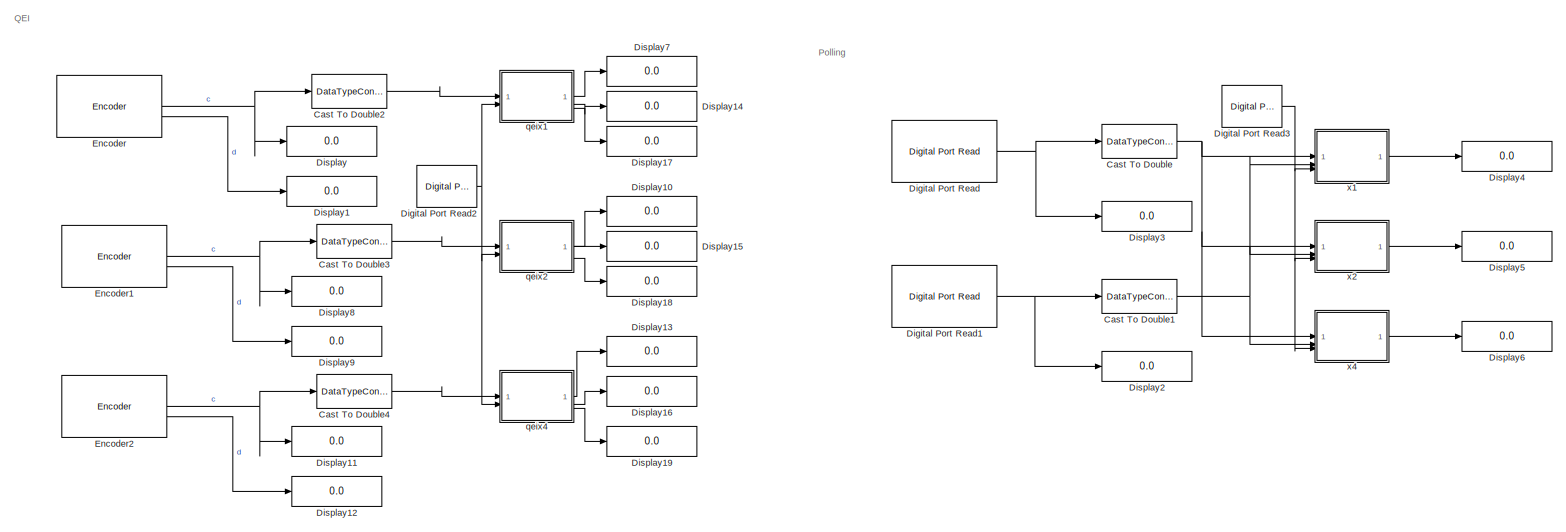
[diagram: root canvas - part 1/1, most of the canvas]
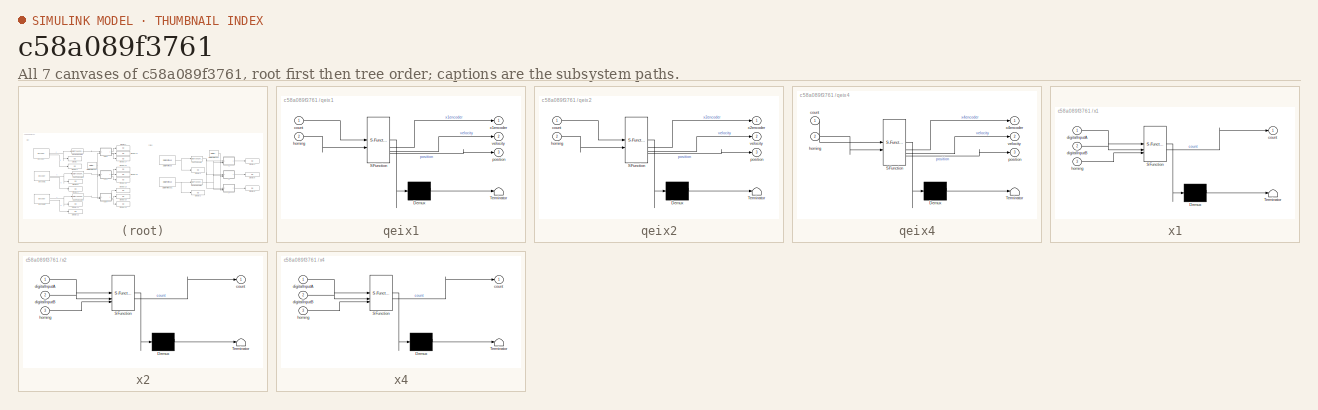
[diagram: thumbnail index - all 7 canvases of the model, root first then tree order]
MODEL slx_c58a089f3761
KIND model
CONFIG AbsTol = auto
CONFIG EnableMultiTasking = on
CONFIG FixedStep = 0.01
CONFIG MaxStep = auto
CONFIG MinStep = auto
CONFIG RelTol = 1e-3
CONFIG SampleTimeConstraint = Unconstrained
CONFIG SolverName = FixedStepAuto
CONFIG StartTime = 0.0
CONFIG StopTime = inf
BLOCK [DataTypeConversion] Cast To Double
  Commented = on
  OutDataTypeStr = double
  RndMeth = Floor
  SaturateOnIntegerOverflow = off
BLOCK [DataTypeConversion] Cast To Double1
  Commented = on
  OutDataTypeStr = double
  RndMeth = Floor
  SaturateOnIntegerOverflow = off
BLOCK [DataTypeConversion] Cast To Double2
  OutDataTypeStr = double
  RndMeth = Floor
  SaturateOnIntegerOverflow = off
BLOCK [DataTypeConversion] Cast To Double3
  OutDataTypeStr = double
  RndMeth = Floor
  SaturateOnIntegerOverflow = off
BLOCK [DataTypeConversion] Cast To Double4
  OutDataTypeStr = double
  RndMeth = Floor
  SaturateOnIntegerOverflow = off
BLOCK [Reference] Digital Port Read  REF=stm32f4xxblockslib/Digital Port Read
  Commented = on
  LibrarySourceBlock = stm32g4xxblockslib/Digital Port Read
  SourceBlock = stm32f4xxblockslib/Digital Port Read
  SourceType = stm32cube.blocks.DigitalPortRead
BLOCK [Reference] Digital Port Read1  REF=stm32f4xxblockslib/Digital Port Read
  Commented = on
  LibrarySourceBlock = stm32g4xxblockslib/Digital Port Read
  SourceBlock = stm32f4xxblockslib/Digital Port Read
  SourceType = stm32cube.blocks.DigitalPortRead
BLOCK [Reference] Digital Port Read2  REF=stm32f4xxblockslib/Digital Port Read
  LibrarySourceBlock = stm32g4xxblockslib/Digital Port Read
  SourceBlock = stm32f4xxblockslib/Digital Port Read
  SourceType = stm32cube.blocks.DigitalPortRead
BLOCK [Reference] Digital Port Read3  REF=stm32f4xxblockslib/Digital Port Read
  Commented = on
  LibrarySourceBlock = stm32g4xxblockslib/Digital Port Read
  SourceBlock = stm32f4xxblockslib/Digital Port Read
  SourceType = stm32cube.blocks.DigitalPortRead
BLOCK [Display] Display
  Decimation = 1
  Format = long
BLOCK [Display] Display1
  Decimation = 1
  Format = long
BLOCK [Display] Display10
  Decimation = 1
  Format = long
BLOCK [Display] Display11
  Decimation = 1
  Format = long
BLOCK [Display] Display12
  Decimation = 1
  Format = long
BLOCK [Display] Display13
  Decimation = 1
  Format = long
BLOCK [Display] Display14
  Decimation = 1
  Format = long
BLOCK [Display] Display15
  Decimation = 1
  Format = long
BLOCK [Display] Display16
  Decimation = 1
  Format = long
BLOCK [Display] Display17
  Decimation = 1
  Format = long
BLOCK [Display] Display18
  Decimation = 1
  Format = long
BLOCK [Display] Display19
  Decimation = 1
  Format = long
BLOCK [Display] Display2
  Commented = on
  Decimation = 1
BLOCK [Display] Display3
  Commented = on
  Decimation = 1
BLOCK [Display] Display4
  Commented = on
  Decimation = 1
BLOCK [Display] Display5
  Commented = on
  Decimation = 1
BLOCK [Display] Display6
  Commented = on
  Decimation = 1
BLOCK [Display] Display7
  Decimation = 1
  Format = long
BLOCK [Display] Display8
  Decimation = 1
  Format = long
BLOCK [Display] Display9
  Decimation = 1
  Format = long
BLOCK [Reference] Encoder  REF=stm32g4xxblockslib/Encoder
  SourceBlock = stm32g4xxblockslib/Encoder
  SourceType = stm32cube.blocks.EncoderBlockForG4
BLOCK [Reference] Encoder1  REF=stm32g4xxblockslib/Encoder
  SourceBlock = stm32g4xxblockslib/Encoder
  SourceType = stm32cube.blocks.EncoderBlockForG4
BLOCK [Reference] Encoder2  REF=stm32g4xxblockslib/Encoder
  SourceBlock = stm32g4xxblockslib/Encoder
  SourceType = stm32cube.blocks.EncoderBlockForG4
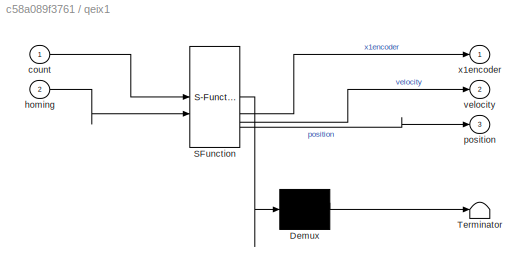
BLOCK [SubSystem] qeix1
  ErrorFcn = Stateflow.Translate.translate
  PermitHierarchicalResolution = ExplicitOnly
  SFBlockType = MATLAB Function
  TreatAsAtomicUnit = on
BLOCK [Demux] qeix1/ Demux 
  Outputs = 1
BLOCK [S-Function] qeix1/ SFunction 
  EnableBusSupport = on
  FunctionName = sf_sfun
  PortCounts = [2 4]
  SFcnIsStateOwnerBlock = off
  SFunctionDeploymentMode = off
  Tag = Stateflow S-Function 4
BLOCK [Terminator] qeix1/ Terminator 
BLOCK [Inport] qeix1/count
BLOCK [Inport] qeix1/homing
  Port = 2
BLOCK [Outport] qeix1/position
  Port = 3
BLOCK [Outport] qeix1/velocity
  Port = 2
BLOCK [Outport] qeix1/x1encoder
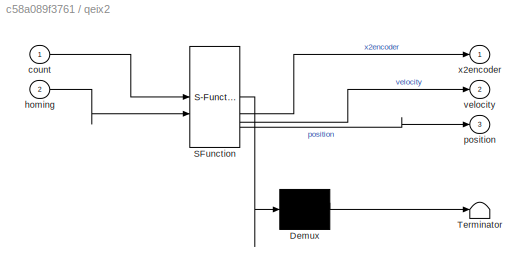
BLOCK [SubSystem] qeix2
  ErrorFcn = Stateflow.Translate.translate
  PermitHierarchicalResolution = ExplicitOnly
  SFBlockType = MATLAB Function
  TreatAsAtomicUnit = on
BLOCK [Demux] qeix2/ Demux 
  Outputs = 1
BLOCK [S-Function] qeix2/ SFunction 
  EnableBusSupport = on
  FunctionName = sf_sfun
  PortCounts = [2 4]
  SFcnIsStateOwnerBlock = off
  SFunctionDeploymentMode = off
  Tag = Stateflow S-Function 5
BLOCK [Terminator] qeix2/ Terminator 
BLOCK [Inport] qeix2/count
BLOCK [Inport] qeix2/homing
  Port = 2
BLOCK [Outport] qeix2/position
  Port = 3
BLOCK [Outport] qeix2/velocity
  Port = 2
BLOCK [Outport] qeix2/x2encoder
BLOCK [SubSystem] qeix4
  ErrorFcn = Stateflow.Translate.translate
  PermitHierarchicalResolution = ExplicitOnly
  SFBlockType = MATLAB Function
  TreatAsAtomicUnit = on
BLOCK [Demux] qeix4/ Demux 
  Outputs = 1
BLOCK [S-Function] qeix4/ SFunction 
  EnableBusSupport = on
  FunctionName = sf_sfun
  PortCounts = [2 4]
  SFcnIsStateOwnerBlock = off
  SFunctionDeploymentMode = off
  Tag = Stateflow S-Function 6
BLOCK [Terminator] qeix4/ Terminator 
BLOCK [Inport] qeix4/count
BLOCK [Inport] qeix4/homing
  Port = 2
BLOCK [Outport] qeix4/position
  Port = 3
BLOCK [Outport] qeix4/velocity
  Port = 2
BLOCK [Outport] qeix4/x4encoder
BLOCK [SubSystem] x1
  Commented = on
  ErrorFcn = Stateflow.Translate.translate
  PermitHierarchicalResolution = ExplicitOnly
  SFBlockType = MATLAB Function
  TreatAsAtomicUnit = on
BLOCK [Demux] x1/ Demux 
  Outputs = 1
BLOCK [S-Function] x1/ SFunction 
  EnableBusSupport = on
  FunctionName = sf_sfun
  PortCounts = [3 2]
  SFcnIsStateOwnerBlock = off
  SFunctionDeploymentMode = off
  Tag = Stateflow S-Function 2
BLOCK [Terminator] x1/ Terminator 
BLOCK [Outport] x1/count
BLOCK [Inport] x1/digitalInputA
BLOCK [Inport] x1/digitalInputB
  Port = 2
BLOCK [Inport] x1/homing
  Port = 3
BLOCK [SubSystem] x2
  Commented = on
  ErrorFcn = Stateflow.Translate.translate
  PermitHierarchicalResolution = ExplicitOnly
  SFBlockType = MATLAB Function
  TreatAsAtomicUnit = on
BLOCK [Demux] x2/ Demux 
  Outputs = 1
BLOCK [S-Function] x2/ SFunction 
  EnableBusSupport = on
  FunctionName = sf_sfun
  PortCounts = [3 2]
  SFcnIsStateOwnerBlock = off
  SFunctionDeploymentMode = off
  Tag = Stateflow S-Function 1
BLOCK [Terminator] x2/ Terminator 
BLOCK [Outport] x2/count
BLOCK [Inport] x2/digitalInputA
BLOCK [Inport] x2/digitalInputB
  Port = 2
BLOCK [Inport] x2/homing
  Port = 3
BLOCK [SubSystem] x4
  Commented = on
  ErrorFcn = Stateflow.Translate.translate
  PermitHierarchicalResolution = ExplicitOnly
  SFBlockType = MATLAB Function
  TreatAsAtomicUnit = on
BLOCK [Demux] x4/ Demux 
  Outputs = 1
BLOCK [S-Function] x4/ SFunction 
  EnableBusSupport = on
  FunctionName = sf_sfun
  PortCounts = [3 2]
  SFcnIsStateOwnerBlock = off
  SFunctionDeploymentMode = off
  Tag = Stateflow S-Function 3
BLOCK [Terminator] x4/ Terminator 
BLOCK [Outport] x4/count
BLOCK [Inport] x4/digitalInputA
BLOCK [Inport] x4/digitalInputB
  Port = 2
BLOCK [Inport] x4/homing
  Port = 3
ANNOTATION (root): Polling
ANNOTATION (root): QEI
NET Cast To Double1:1 -> x1:2, x2:2, x4:2
LINE Cast To Double2:1 -> qeix1:1
LINE Cast To Double3:1 -> qeix2:1
LINE Cast To Double4:1 -> qeix4:1
NET Cast To Double:1 -> x1:1, x2:1, x4:1
NET Digital Port Read1:1 -> Cast To Double1:1, Display2:1
NET Digital Port Read2:1 -> qeix1:2, qeix2:2, qeix4:2
NET Digital Port Read3:1 -> x1:3, x2:3, x4:3
NET Digital Port Read:1 -> Cast To Double:1, Display3:1
NET Encoder1:1 -> Cast To Double3:1, Display8:1
LINE Encoder1:2 -> Display9:1
NET Encoder2:1 -> Cast To Double4:1, Display11:1
LINE Encoder2:2 -> Display12:1
NET Encoder:1 -> Cast To Double2:1, Display:1
LINE Encoder:2 -> Display1:1
LINE qeix1:1 -> Display7:1
LINE qeix1:2 -> Display14:1
LINE qeix1:3 -> Display17:1
LINE qeix2:1 -> Display10:1
LINE qeix2:2 -> Display15:1
LINE qeix2:3 -> Display18:1
LINE qeix4:1 -> Display13:1
LINE qeix4:2 -> Display16:1
LINE qeix4:3 -> Display19:1
LINE x1:1 -> Display4:1
LINE x2:1 -> Display5:1
LINE x4:1 -> Display6:1
note: NET lines group one-source signal fan-out (src -> all destinations, sorted); 1:1 wires keep LINE
CHART x2 states=1 transitions=1
  STATE_LABEL 'eML_blk_kernel()'
  STATE_LABEL 'SCRIPT:\nfunction count = readEncoderX1(digitalInputA, digitalInputB,homing)\n    persistent encoderCount;\n\n    if isempty(encoderCount)\n        encoderCount = 0;\n    end\n\n    persistent lastA;\n    if isempty(lastA)\n        lastA = digitalInputA;\n    end\n    if homing > 0\n        encoderCount = 0;\n        lastA = digitalInputA;\n    end\n    if lastA ~= digitalInputA\n        if digitalInputA == 0 &&  ...<+536ch>'
CHART x1 states=1 transitions=1
  STATE_LABEL 'eML_blk_kernel()'
  STATE_LABEL 'SCRIPT:\nfunction count = readEncoderX1(digitalInputA, digitalInputB, homing)\n    persistent encoderCount;\n\n    if isempty(encoderCount)\n        encoderCount = 0;\n    end\n\n    persistent lastA;\n    if isempty(lastA)\n        lastA = digitalInputA;\n    end\n    if homing > 0\n        encoderCount = 0;\n        lastA = digitalInputA;\n    end\n    if lastA ~= digitalInputA\n        if digitalInputA == 0 && ...<+277ch>'
CHART x4 states=1 transitions=1
  STATE_LABEL 'eML_blk_kernel()'
  STATE_LABEL 'SCRIPT:\nfunction count = readEncoderX1(digitalInputA, digitalInputB,homing)\n    persistent encoderCount;\n\n    if isempty(encoderCount)\n        encoderCount = 0;\n    end\n\n    persistent lastA;\n    if isempty(lastA)\n        lastA = digitalInputA;\n    end\n    persistent lastB;\n    if isempty(lastB)\n        lastB = digitalInputB;\n    end\n    if homing > 0\n        encoderCount = 0;\n        lastA = digi...<+1031ch>'
CHART qeix1 states=1 transitions=1
  STATE_LABEL 'eML_blk_kernel()'
  STATE_LABEL 'SCRIPT:\nfunction [x1encoder, velocity,position] = fcn(count, homing)\n    persistent encoderCount;\n    persistent prev_Count;\n    persistent prev_EncoderCount;\n    \n    PPR = 24;  \n    \n    if isempty(prev_Count)\n        prev_Count = count;\n    end\n    if isempty(encoderCount)\n        encoderCount = 0;\n    end\n    if isempty(prev_EncoderCount)\n        prev_EncoderCount = 0;\n    end\n    \n    if homi...<+705ch>'
CHART qeix2 states=1 transitions=1
  STATE_LABEL 'eML_blk_kernel()'
  STATE_LABEL 'SCRIPT:\nfunction [x2encoder, velocity,position] = fcn(count, homing)\n    persistent encoderCount;\n    persistent prev_Count;\n    persistent prev_EncoderCount;\n    \n    \n    PPR = 24;  \n    \n    if isempty(prev_Count)\n        prev_Count = count;\n    end\n    if isempty(encoderCount)\n        encoderCount = 0;\n    end\n    if isempty(prev_EncoderCount)\n        prev_EncoderCount = 0;\n    end\n    \n    if...<+733ch>'
CHART qeix4 states=1 transitions=1
  STATE_LABEL 'eML_blk_kernel()'
  STATE_LABEL 'SCRIPT:\nfunction [x4encoder, velocity,position] = fcn(count, homing)\n    persistent encoderCount;\n    persistent prev_Count;\n    persistent prev_EncoderCount;\n    \n    % จำนวนพัลส์ต่อรอบ (PPR)\n    PPR = 24;  % กำหนดค่า PPR ของ Encoder ตามที่ใช้งาน\n    \n    if isempty(prev_Count)\n        prev_Count = count;\n    end\n    if isempty(encoderCount)\n        encoderCount = 0;\n    end\n    if isempty(prev_E...<+828ch>'
CHART  states=0 transitions=0
CHART  states=0 transitions=0
CHART  states=0 transitions=0
CHART  states=0 transitions=0
CHART  states=0 transitions=0
CHART  states=0 transitions=0
